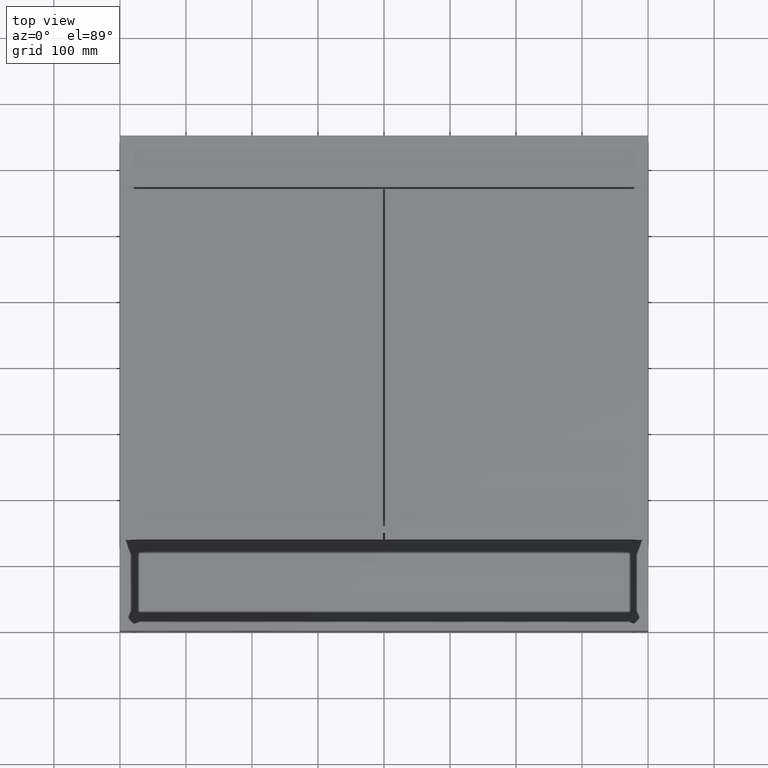
[diagram: clean part render]
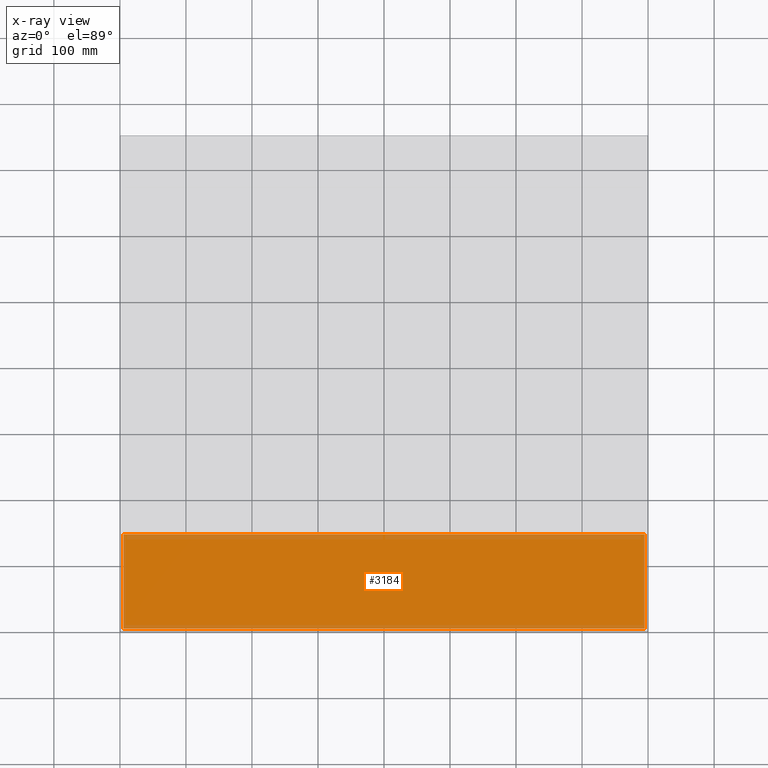
[diagram: x-ray — body ghosted, one internal face saturated and labeled with its STEP entity id]
A machine part, top view, then the same camera in x-ray: the body is ghosted and one INTERNAL B-rep face — a face not visible from any outside direction — is saturated and labeled: STEP entity #3184.
In plain terms, the highlighted planar face has unit normal (-0, 0, 1).
Its self-contained STEP definition (entity closure, byte-faithful):
#209 = CARTESIAN_POINT ( 'NONE',  ( 5.000000000000004441, 938.0405052907096888, -124.9999999999999432 ) ) ;
#460 = EDGE_CURVE ( 'NONE', #8962, #3296, #5517, .T. ) ;
#485 = CARTESIAN_POINT ( 'NONE',  ( 5.000000000000004441, 5.000000000000004441, -124.9999999999999432 ) ) ;
#837 = CARTESIAN_POINT ( 'NONE',  ( 795.0000000000000000, 938.0405052907096888, -124.9999999999997868 ) ) ;
#1240 = DIRECTION ( 'NONE',  ( -1.000000000000000000, -0.0000000000000000000, -1.932350201088089106E-16 ) ) ;
#1414 = LINE ( 'NONE', #4850, #8164 ) ;
#1435 = VERTEX_POINT ( 'NONE', #3336 ) ;
#1555 = LINE ( 'NONE', #4988, #6523 ) ;
#1969 = ORIENTED_EDGE ( 'NONE', *, *, #460, .T. ) ;
#2059 = VERTEX_POINT ( 'NONE', #3898 ) ;
#3026 = AXIS2_PLACEMENT_3D ( 'NONE', #209, #3642, #7078 ) ;
#3184 = ADVANCED_FACE ( 'NONE', ( #4485 ), #7929, .F. ) ;
#3296 = VERTEX_POINT ( 'NONE', #485 ) ;
#3336 = CARTESIAN_POINT ( 'NONE',  ( 795.0000000000000000, 148.0000000000000284, -124.9999999999997868 ) ) ;
#3642 = DIRECTION ( 'NONE',  ( -1.932350201088089106E-16, 0.0000000000000000000, 1.000000000000000000 ) ) ;
#3834 = EDGE_CURVE ( 'NONE', #1435, #8962, #8564, .T. ) ;
#3898 = CARTESIAN_POINT ( 'NONE',  ( 5.000000000000004441, 148.0000000000000284, -124.9999999999999432 ) ) ;
#4275 = DIRECTION ( 'NONE',  ( -0.0000000000000000000, -1.000000000000000000, -0.0000000000000000000 ) ) ;
#4485 = FACE_OUTER_BOUND ( 'NONE', #8963, .T. ) ;
#4850 = CARTESIAN_POINT ( 'NONE',  ( 5.000000000000004441, 938.0405052907096888, -124.9999999999999432 ) ) ;
#4988 = CARTESIAN_POINT ( 'NONE',  ( 5.000000000000004441, 148.0000000000000284, -124.9999999999999432 ) ) ;
#5517 = LINE ( 'NONE', #8957, #8725 ) ;
#6492 = CARTESIAN_POINT ( 'NONE',  ( 795.0000000000000000, 5.000000000000004441, -124.9999999999997868 ) ) ;
#6523 = VECTOR ( 'NONE', #8440, 1000.000000000000000 ) ;
#7078 = DIRECTION ( 'NONE',  ( 1.000000000000000000, 0.0000000000000000000, 1.932350201088089106E-16 ) ) ;
#7162 = VECTOR ( 'NONE', #4275, 1000.000000000000000 ) ;
#7312 = ORIENTED_EDGE ( 'NONE', *, *, #3834, .T. ) ;
#7321 = ORIENTED_EDGE ( 'NONE', *, *, #8723, .F. ) ;
#7843 = ORIENTED_EDGE ( 'NONE', *, *, #7903, .F. ) ;
#7903 = EDGE_CURVE ( 'NONE', #2059, #3296, #1414, .T. ) ;
#7929 = PLANE ( 'NONE',  #3026 ) ;
#8164 = VECTOR ( 'NONE', #8302, 1000.000000000000000 ) ;
#8302 = DIRECTION ( 'NONE',  ( -0.0000000000000000000, -1.000000000000000000, -0.0000000000000000000 ) ) ;
#8440 = DIRECTION ( 'NONE',  ( -1.000000000000000000, 0.0000000000000000000, -1.932350201088088859E-16 ) ) ;
#8564 = LINE ( 'NONE', #837, #7162 ) ;
#8723 = EDGE_CURVE ( 'NONE', #1435, #2059, #1555, .T. ) ;
#8725 = VECTOR ( 'NONE', #1240, 1000.000000000000000 ) ;
#8957 = CARTESIAN_POINT ( 'NONE',  ( 5.000000000000004441, 5.000000000000004441, -124.9999999999999432 ) ) ;
#8962 = VERTEX_POINT ( 'NONE', #6492 ) ;
#8963 = EDGE_LOOP ( 'NONE', ( #7321, #7312, #1969, #7843 ) ) ;